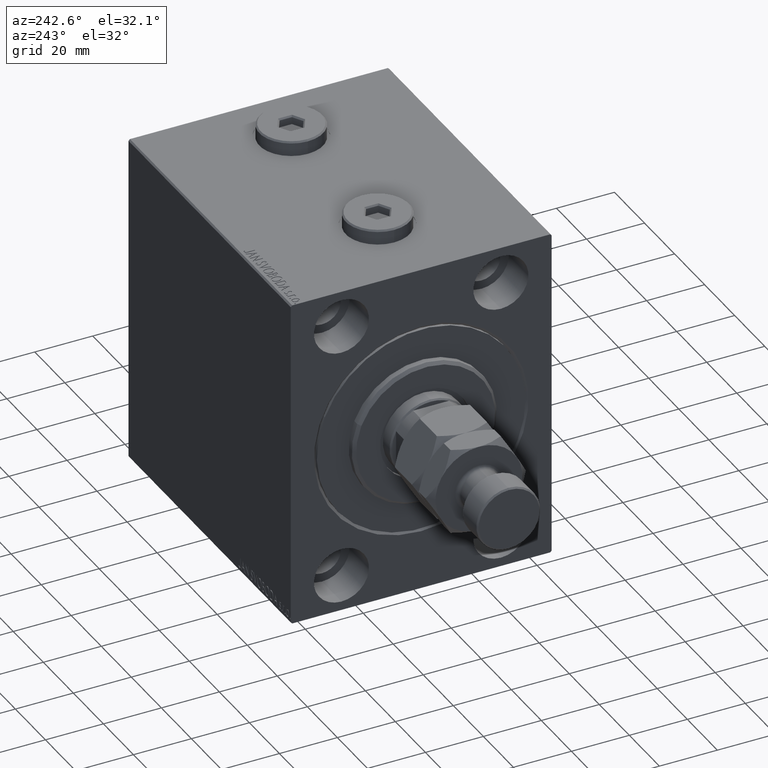
[diagram: clean part render]
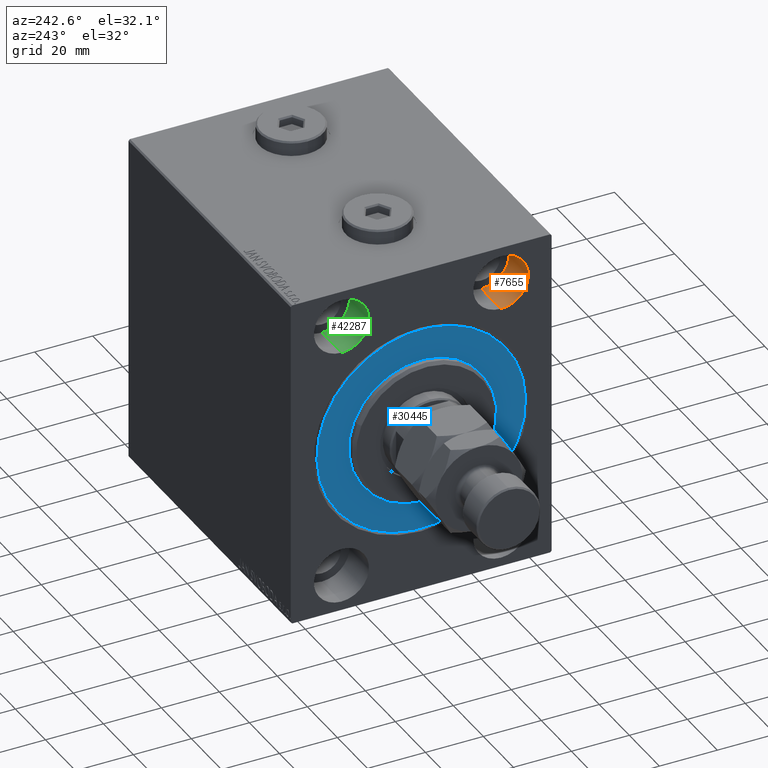
[diagram: same view with three faces highlighted in distinct colors, each labeled with its STEP entity id]
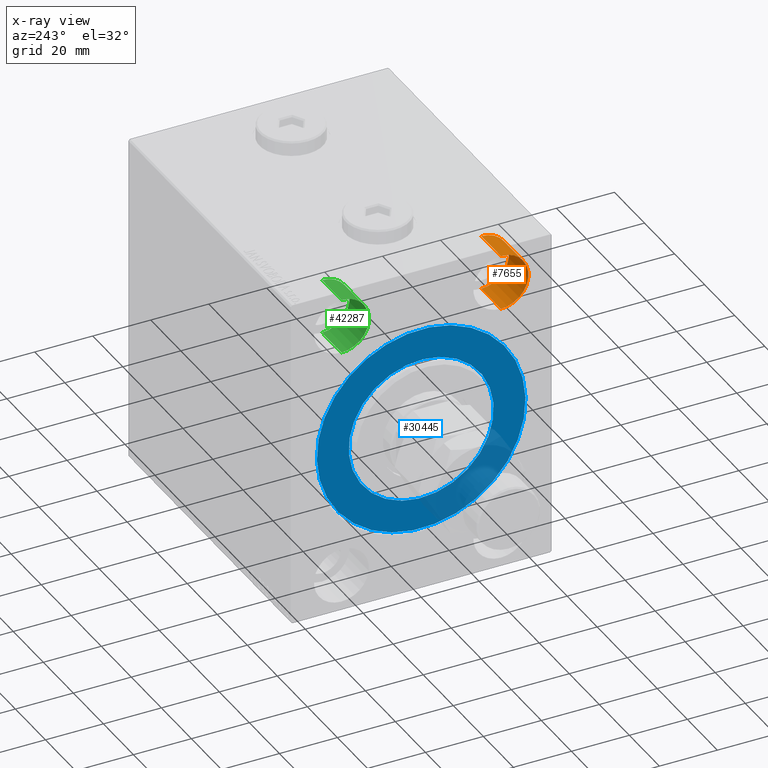
[diagram: x-ray of the same camera — body ghosted, the three highlighted faces saturated]
A machine part, auxiliary view with three faces highlighted in distinct colors.
The next image is the same camera in x-ray (body ghosted, the three faces saturated) — at least one of them is partly hidden behind the body in this view.
Their STEP definitions:

[orange] entity #7655 — the highlighted cylindrical surface (edge-blend (fillet) strip) has radius 9.5 mm, axis along (-1, -0, -0).
#91 = CARTESIAN_POINT ( 'NONE',  ( 13.00000000000000000, -27.49999999999998934, 45.00000000000000711 ) ) ;
#1632 = ORIENTED_EDGE ( 'NONE', *, *, #4180, .F. ) ;
#2422 = ORIENTED_EDGE ( 'NONE', *, *, #40315, .F. ) ;
#3188 = AXIS2_PLACEMENT_3D ( 'NONE', #91, #25072, #39779 ) ;
#4044 = AXIS2_PLACEMENT_3D ( 'NONE', #34929, #20450, #35634 ) ;
#4180 = EDGE_CURVE ( 'NONE', #31078, #15267, #31426, .T. ) ;
#6133 = ORIENTED_EDGE ( 'NONE', *, *, #29161, .T. ) ;
#6551 = CARTESIAN_POINT ( 'NONE',  ( 0.000000000000000000, -27.49999999999998934, 45.00000000000000711 ) ) ;
#7655 = ADVANCED_FACE ( 'NONE', ( #43849 ), #14143, .F. ) ;
#13674 = ORIENTED_EDGE ( 'NONE', *, *, #37455, .T. ) ;
#13705 = CARTESIAN_POINT ( 'NONE',  ( 13.00000000000000000, -27.49999999999998934, 35.50000000000000711 ) ) ;
#14143 = CYLINDRICAL_SURFACE ( 'NONE', #3188, 9.500000000000001776 ) ;
#15267 = VERTEX_POINT ( 'NONE', #40273 ) ;
#20450 = DIRECTION ( 'NONE',  ( -1.000000000000000000, 0.000000000000000000, 0.000000000000000000 ) ) ;
#21062 = DIRECTION ( 'NONE',  ( -1.000000000000000000, 0.000000000000000000, 0.000000000000000000 ) ) ;
#22516 = VERTEX_POINT ( 'NONE', #31164 ) ;
#23134 = EDGE_LOOP ( 'NONE', ( #2422, #6133, #13674, #1632 ) ) ;
#25072 = DIRECTION ( 'NONE',  ( -1.000000000000000000, -0.000000000000000000, -0.000000000000000000 ) ) ;
#27504 = LINE ( 'NONE', #13705, #44102 ) ;
#28435 = DIRECTION ( 'NONE',  ( -1.000000000000000000, -0.000000000000000000, -0.000000000000000000 ) ) ;
#29161 = EDGE_CURVE ( 'NONE', #39074, #22516, #27504, .T. ) ;
#30639 = CIRCLE ( 'NONE', #36687, 9.500000000000001776 ) ;
#31078 = VERTEX_POINT ( 'NONE', #32491 ) ;
#31164 = CARTESIAN_POINT ( 'NONE',  ( 0.000000000000000000, -27.49999999999998934, 35.50000000000000711 ) ) ;
#31303 = VECTOR ( 'NONE', #38048, 1000.000000000000000 ) ;
#31426 = LINE ( 'NONE', #34499, #31303 ) ;
#32491 = CARTESIAN_POINT ( 'NONE',  ( 13.00000000000000000, -27.49999999999998934, 54.50000000000000711 ) ) ;
#34499 = CARTESIAN_POINT ( 'NONE',  ( 13.00000000000000000, -27.49999999999998934, 54.50000000000000711 ) ) ;
#34929 = CARTESIAN_POINT ( 'NONE',  ( 13.00000000000000000, -27.49999999999998934, 45.00000000000000711 ) ) ;
#35634 = DIRECTION ( 'NONE',  ( 0.000000000000000000, 0.000000000000000000, 1.000000000000000000 ) ) ;
#36687 = AXIS2_PLACEMENT_3D ( 'NONE', #6551, #21062, #39102 ) ;
#37455 = EDGE_CURVE ( 'NONE', #22516, #15267, #30639, .T. ) ;
#38048 = DIRECTION ( 'NONE',  ( -1.000000000000000000, -0.000000000000000000, -0.000000000000000000 ) ) ;
#39074 = VERTEX_POINT ( 'NONE', #44155 ) ;
#39102 = DIRECTION ( 'NONE',  ( 0.000000000000000000, 0.000000000000000000, 1.000000000000000000 ) ) ;
#39779 = DIRECTION ( 'NONE',  ( 0.000000000000000000, 0.000000000000000000, 1.000000000000000000 ) ) ;
#40273 = CARTESIAN_POINT ( 'NONE',  ( 0.000000000000000000, -27.49999999999998934, 54.50000000000000711 ) ) ;
#40315 = EDGE_CURVE ( 'NONE', #39074, #31078, #44307, .T. ) ;
#43849 = FACE_OUTER_BOUND ( 'NONE', #23134, .T. ) ;
#44102 = VECTOR ( 'NONE', #28435, 1000.000000000000000 ) ;
#44155 = CARTESIAN_POINT ( 'NONE',  ( 13.00000000000000000, -27.49999999999998934, 35.50000000000000711 ) ) ;
#44307 = CIRCLE ( 'NONE', #4044, 9.500000000000001776 ) ;

[blue] entity #30445 — the highlighted planar face has unit normal (1, 0, -0).
#1212 = DIRECTION ( 'NONE',  ( 1.000000000000000000, -0.000000000000000000, 0.000000000000000000 ) ) ;
#2781 = DIRECTION ( 'NONE',  ( 1.000000000000000000, -0.000000000000000000, 0.000000000000000000 ) ) ;
#2894 = FACE_OUTER_BOUND ( 'NONE', #3010, .T. ) ;
#3008 = CARTESIAN_POINT ( 'NONE',  ( 0.000000000000000000, 0.000000000000000000, 0.000000000000000000 ) ) ;
#3010 = EDGE_LOOP ( 'NONE', ( #34318, #37198 ) ) ;
#3245 = CARTESIAN_POINT ( 'NONE',  ( 0.000000000000000000, 4.408728476930470856E-15, 36.00000000000000000 ) ) ;
#5616 = VERTEX_POINT ( 'NONE', #3245 ) ;
#5690 = EDGE_CURVE ( 'NONE', #43498, #47050, #12359, .T. ) ;
#10404 = DIRECTION ( 'NONE',  ( 0.000000000000000000, 0.000000000000000000, -1.000000000000000000 ) ) ;
#11767 = AXIS2_PLACEMENT_3D ( 'NONE', #37316, #1212, #41133 ) ;
#12359 = CIRCLE ( 'NONE', #35889, 25.00000000000000000 ) ;
#12582 = VERTEX_POINT ( 'NONE', #18641 ) ;
#13373 = DIRECTION ( 'NONE',  ( 0.000000000000000000, 0.000000000000000000, 1.000000000000000000 ) ) ;
#14032 = EDGE_CURVE ( 'NONE', #5616, #12582, #26913, .T. ) ;
#17977 = CARTESIAN_POINT ( 'NONE',  ( 0.000000000000000000, 0.000000000000000000, 25.00000000000000000 ) ) ;
#18641 = CARTESIAN_POINT ( 'NONE',  ( 0.000000000000000000, 0.000000000000000000, -36.00000000000000000 ) ) ;
#23832 = PLANE ( 'NONE',  #31253 ) ;
#24165 = DIRECTION ( 'NONE',  ( 0.000000000000000000, 0.000000000000000000, 1.000000000000000000 ) ) ;
#25539 = EDGE_CURVE ( 'NONE', #12582, #5616, #27147, .T. ) ;
#26913 = CIRCLE ( 'NONE', #32969, 36.00000000000000000 ) ;
#27147 = CIRCLE ( 'NONE', #32468, 36.00000000000000000 ) ;
#29994 = CIRCLE ( 'NONE', #11767, 25.00000000000000000 ) ;
#30445 = ADVANCED_FACE ( 'NONE', ( #30971, #2894 ), #23832, .F. ) ;
#30971 = FACE_BOUND ( 'NONE', #33569, .T. ) ;
#31253 = AXIS2_PLACEMENT_3D ( 'NONE', #42597, #38766, #13373 ) ;
#32223 = CARTESIAN_POINT ( 'NONE',  ( 0.000000000000000000, 0.000000000000000000, 0.000000000000000000 ) ) ;
#32468 = AXIS2_PLACEMENT_3D ( 'NONE', #32223, #39334, #46704 ) ;
#32969 = AXIS2_PLACEMENT_3D ( 'NONE', #46231, #35543, #24165 ) ;
#33569 = EDGE_LOOP ( 'NONE', ( #41936, #39212 ) ) ;
#34318 = ORIENTED_EDGE ( 'NONE', *, *, #25539, .F. ) ;
#35543 = DIRECTION ( 'NONE',  ( -1.000000000000000000, 0.000000000000000000, 0.000000000000000000 ) ) ;
#35889 = AXIS2_PLACEMENT_3D ( 'NONE', #3008, #2781, #10404 ) ;
#37198 = ORIENTED_EDGE ( 'NONE', *, *, #14032, .F. ) ;
#37316 = CARTESIAN_POINT ( 'NONE',  ( 0.000000000000000000, 0.000000000000000000, 0.000000000000000000 ) ) ;
#38766 = DIRECTION ( 'NONE',  ( -1.000000000000000000, 0.000000000000000000, 0.000000000000000000 ) ) ;
#39212 = ORIENTED_EDGE ( 'NONE', *, *, #44300, .F. ) ;
#39334 = DIRECTION ( 'NONE',  ( -1.000000000000000000, 0.000000000000000000, 0.000000000000000000 ) ) ;
#41133 = DIRECTION ( 'NONE',  ( 0.000000000000000000, 0.000000000000000000, -1.000000000000000000 ) ) ;
#41936 = ORIENTED_EDGE ( 'NONE', *, *, #5690, .F. ) ;
#42597 = CARTESIAN_POINT ( 'NONE',  ( 0.000000000000000000, 0.000000000000000000, 0.000000000000000000 ) ) ;
#43498 = VERTEX_POINT ( 'NONE', #17977 ) ;
#44300 = EDGE_CURVE ( 'NONE', #47050, #43498, #29994, .T. ) ;
#44868 = CARTESIAN_POINT ( 'NONE',  ( 0.000000000000000000, 3.061616997868383043E-15, -25.00000000000000000 ) ) ;
#46231 = CARTESIAN_POINT ( 'NONE',  ( 0.000000000000000000, 0.000000000000000000, 0.000000000000000000 ) ) ;
#46704 = DIRECTION ( 'NONE',  ( 0.000000000000000000, 0.000000000000000000, 1.000000000000000000 ) ) ;
#47050 = VERTEX_POINT ( 'NONE', #44868 ) ;

[green] entity #42287 — the highlighted cylindrical surface (edge-blend (fillet) strip) has radius 9.5 mm, axis along (-1, -0, -0).
#485 = CARTESIAN_POINT ( 'NONE',  ( 0.000000000000000000, 27.50000000000001066, 54.50000000000000711 ) ) ;
#1470 = ORIENTED_EDGE ( 'NONE', *, *, #40451, .T. ) ;
#1880 = CIRCLE ( 'NONE', #11015, 9.500000000000001776 ) ;
#3439 = AXIS2_PLACEMENT_3D ( 'NONE', #20315, #13415, #20772 ) ;
#5238 = DIRECTION ( 'NONE',  ( 0.000000000000000000, 0.000000000000000000, 1.000000000000000000 ) ) ;
#6632 = CARTESIAN_POINT ( 'NONE',  ( 13.00000000000000000, 27.50000000000001066, 45.00000000000000711 ) ) ;
#7366 = ORIENTED_EDGE ( 'NONE', *, *, #45774, .F. ) ;
#8335 = DIRECTION ( 'NONE',  ( -1.000000000000000000, 0.000000000000000000, 0.000000000000000000 ) ) ;
#11015 = AXIS2_PLACEMENT_3D ( 'NONE', #23082, #8335, #5238 ) ;
#11053 = CIRCLE ( 'NONE', #3439, 9.500000000000001776 ) ;
#12661 = ORIENTED_EDGE ( 'NONE', *, *, #44139, .T. ) ;
#13415 = DIRECTION ( 'NONE',  ( -1.000000000000000000, 0.000000000000000000, 0.000000000000000000 ) ) ;
#16054 = CARTESIAN_POINT ( 'NONE',  ( 13.00000000000000000, 27.50000000000001066, 35.50000000000000711 ) ) ;
#16438 = DIRECTION ( 'NONE',  ( -1.000000000000000000, -0.000000000000000000, -0.000000000000000000 ) ) ;
#16993 = AXIS2_PLACEMENT_3D ( 'NONE', #6632, #31837, #39407 ) ;
#19274 = VERTEX_POINT ( 'NONE', #25466 ) ;
#20315 = CARTESIAN_POINT ( 'NONE',  ( 13.00000000000000000, 27.50000000000001066, 45.00000000000000711 ) ) ;
#20772 = DIRECTION ( 'NONE',  ( 0.000000000000000000, 0.000000000000000000, 1.000000000000000000 ) ) ;
#21358 = FACE_OUTER_BOUND ( 'NONE', #46661, .T. ) ;
#22550 = DIRECTION ( 'NONE',  ( -1.000000000000000000, -0.000000000000000000, -0.000000000000000000 ) ) ;
#23082 = CARTESIAN_POINT ( 'NONE',  ( 0.000000000000000000, 27.50000000000001066, 45.00000000000000711 ) ) ;
#23907 = LINE ( 'NONE', #16054, #38961 ) ;
#24281 = LINE ( 'NONE', #45894, #30052 ) ;
#24811 = ORIENTED_EDGE ( 'NONE', *, *, #45371, .F. ) ;
#25466 = CARTESIAN_POINT ( 'NONE',  ( 0.000000000000000000, 27.50000000000001066, 35.50000000000000711 ) ) ;
#30052 = VECTOR ( 'NONE', #16438, 1000.000000000000000 ) ;
#31837 = DIRECTION ( 'NONE',  ( -1.000000000000000000, -0.000000000000000000, -0.000000000000000000 ) ) ;
#33313 = VERTEX_POINT ( 'NONE', #41647 ) ;
#35047 = VERTEX_POINT ( 'NONE', #485 ) ;
#38179 = VERTEX_POINT ( 'NONE', #42521 ) ;
#38961 = VECTOR ( 'NONE', #22550, 1000.000000000000000 ) ;
#39407 = DIRECTION ( 'NONE',  ( 0.000000000000000000, 0.000000000000000000, 1.000000000000000000 ) ) ;
#40451 = EDGE_CURVE ( 'NONE', #33313, #19274, #23907, .T. ) ;
#41647 = CARTESIAN_POINT ( 'NONE',  ( 13.00000000000000000, 27.50000000000001066, 35.50000000000000711 ) ) ;
#42287 = ADVANCED_FACE ( 'NONE', ( #21358 ), #45843, .F. ) ;
#42521 = CARTESIAN_POINT ( 'NONE',  ( 13.00000000000000000, 27.50000000000001066, 54.50000000000000711 ) ) ;
#44139 = EDGE_CURVE ( 'NONE', #19274, #35047, #1880, .T. ) ;
#45371 = EDGE_CURVE ( 'NONE', #33313, #38179, #11053, .T. ) ;
#45774 = EDGE_CURVE ( 'NONE', #38179, #35047, #24281, .T. ) ;
#45843 = CYLINDRICAL_SURFACE ( 'NONE', #16993, 9.500000000000001776 ) ;
#45894 = CARTESIAN_POINT ( 'NONE',  ( 13.00000000000000000, 27.50000000000001066, 54.50000000000000711 ) ) ;
#46661 = EDGE_LOOP ( 'NONE', ( #24811, #1470, #12661, #7366 ) ) ;